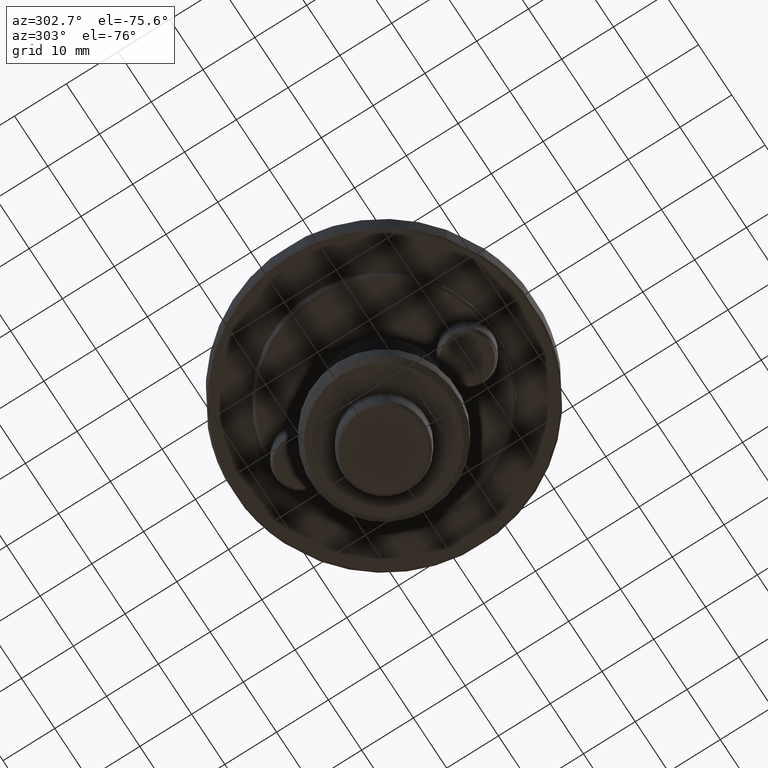
[diagram: clean part render]
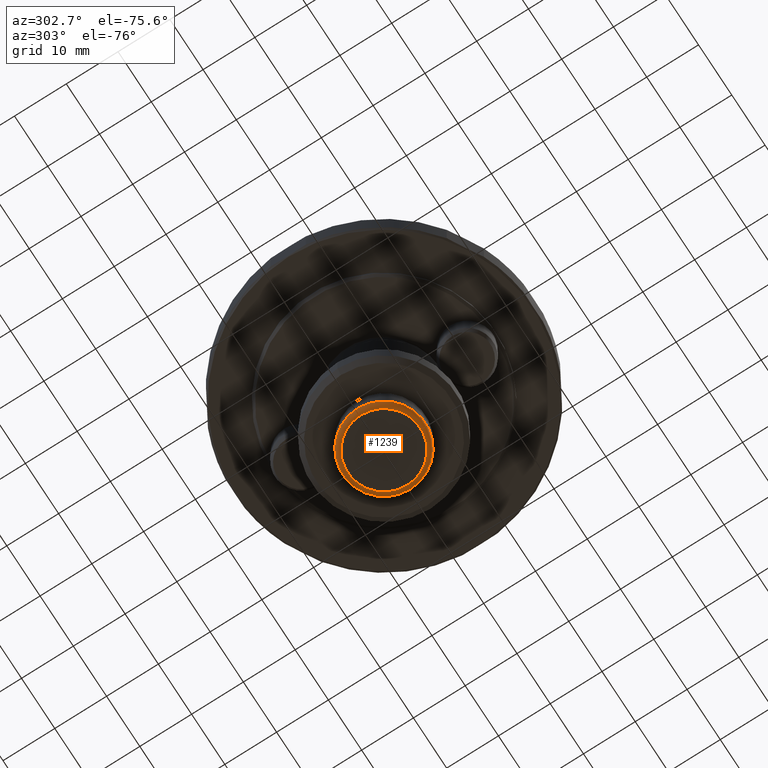
[diagram: same view with one face highlighted and labeled with its STEP entity id]
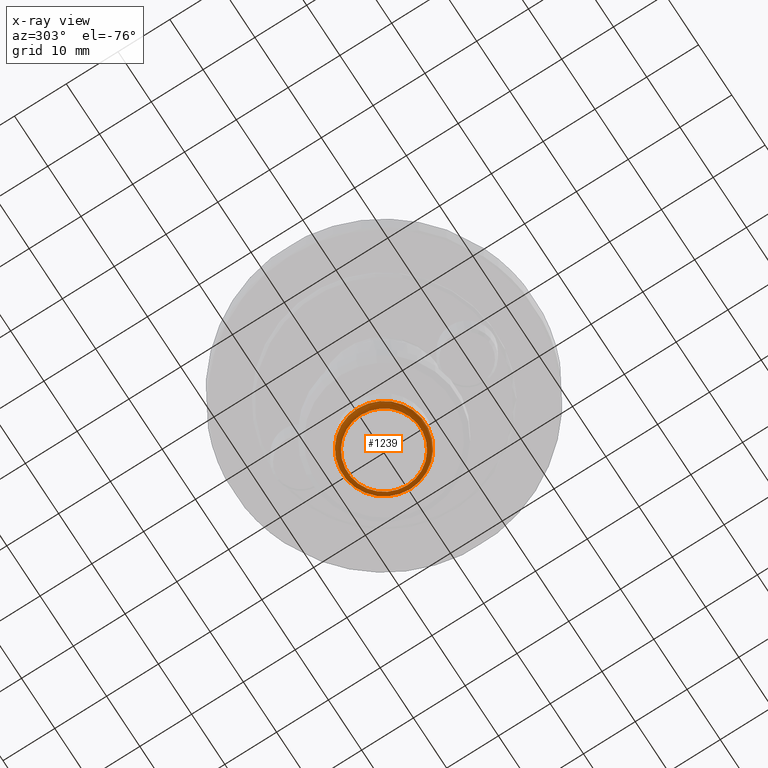
[diagram: x-ray of the same camera — body ghosted, the highlighted face saturated]
A machine part, auxiliary view. The second image highlights one B-rep face of the part: STEP entity #1239.
The next image is the same camera in x-ray: the body ghosted, the highlighted face saturated — about 0% of this face is hidden behind the body in this view.
In plain terms, the highlighted toroidal blend (fillet) surface has major radius 7 mm and minor (blend) radius 1 mm.
Its self-contained STEP definition (entity closure, byte-faithful):
#175=TOROIDAL_SURFACE('',#1371,7.00000000000001,0.999999999999992);
#282=ORIENTED_EDGE('',*,*,#582,.F.);
#283=ORIENTED_EDGE('',*,*,#583,.T.);
#582=EDGE_CURVE('',#739,#739,#854,.T.);
#583=EDGE_CURVE('',#740,#740,#855,.T.);
#739=VERTEX_POINT('',#2005);
#740=VERTEX_POINT('',#2008);
#854=CIRCLE('',#1370,7.);
#855=CIRCLE('',#1372,8.);
#947=EDGE_LOOP('',(#282));
#948=EDGE_LOOP('',(#283));
#1082=FACE_BOUND('',#947,.T.);
#1083=FACE_BOUND('',#948,.T.);
#1239=ADVANCED_FACE('',(#1082,#1083),#175,.T.);
#1370=AXIS2_PLACEMENT_3D('',#2004,#1609,#1610);
#1371=AXIS2_PLACEMENT_3D('',#2006,#1611,#1612);
#1372=AXIS2_PLACEMENT_3D('',#2007,#1613,#1614);
#1609=DIRECTION('',(1.22464605849178E-16,1.05145690546658E-32,-1.));
#1610=DIRECTION('',(-1.,8.32667268468867E-17,-1.22464605849178E-16));
#1611=DIRECTION('',(1.22464605849178E-16,1.05145690546658E-32,-1.));
#1612=DIRECTION('',(-1.,8.32667268468867E-17,-1.22464605849178E-16));
#1613=DIRECTION('',(1.22464605849178E-16,1.05145690546658E-32,-1.));
#1614=DIRECTION('',(-1.,8.32667268468867E-17,-1.22464605849178E-16));
#2004=CARTESIAN_POINT('',(5.185207261278E-15,9.14130042582294E-31,-39.5));
#2005=CARTESIAN_POINT('',(-6.99999999999999,5.82867087928208E-16,-39.5));
#2006=CARTESIAN_POINT('',(5.39950940272998E-15,8.75574008768989E-31,-38.5));
#2007=CARTESIAN_POINT('',(5.06274265542882E-15,9.03615473527629E-31,-38.5));
#2008=CARTESIAN_POINT('',(-7.99999999999999,6.66133814775094E-16,-38.5));